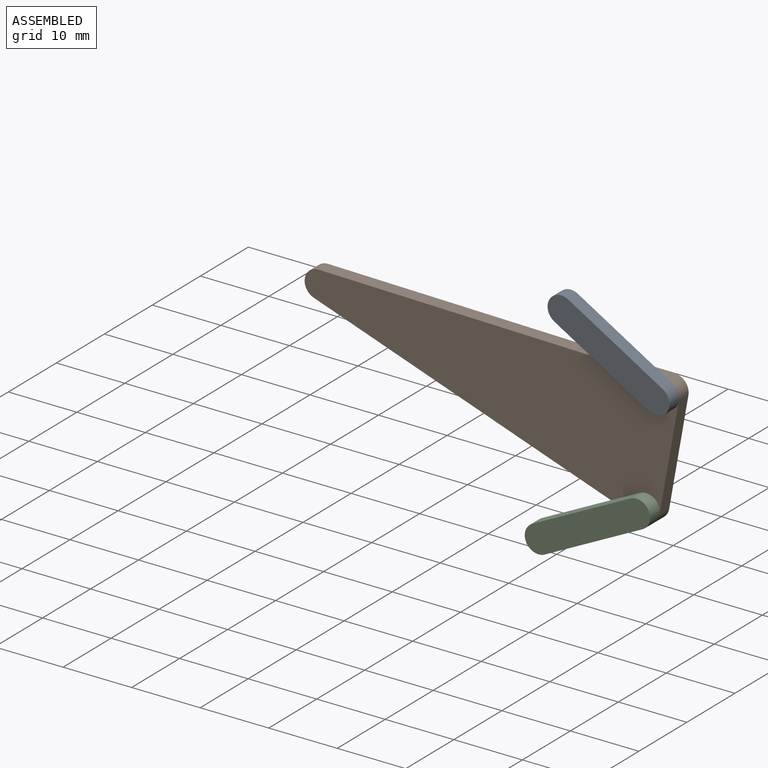
[diagram: assembled view]
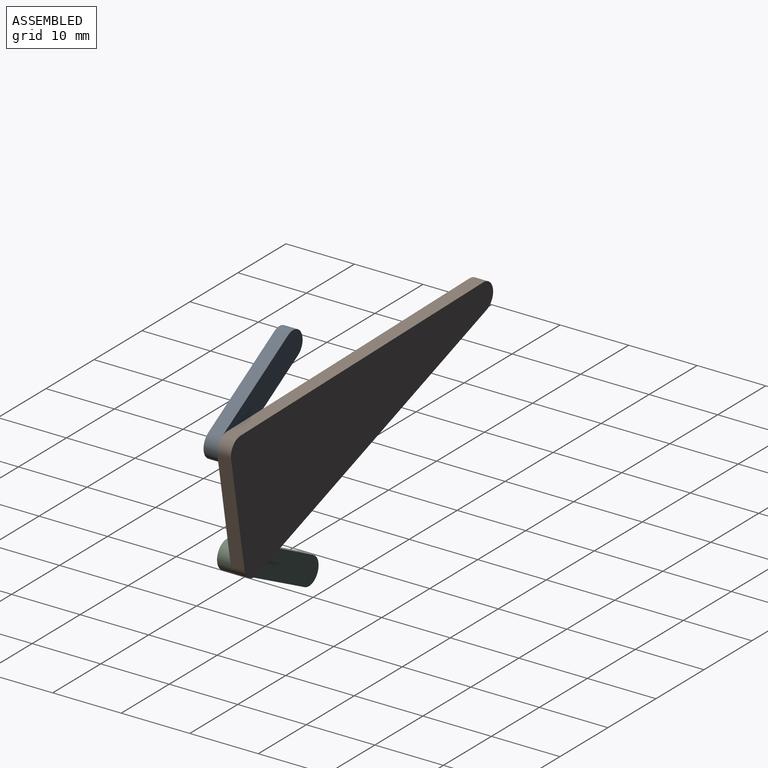
[diagram: assembled view, second angle]
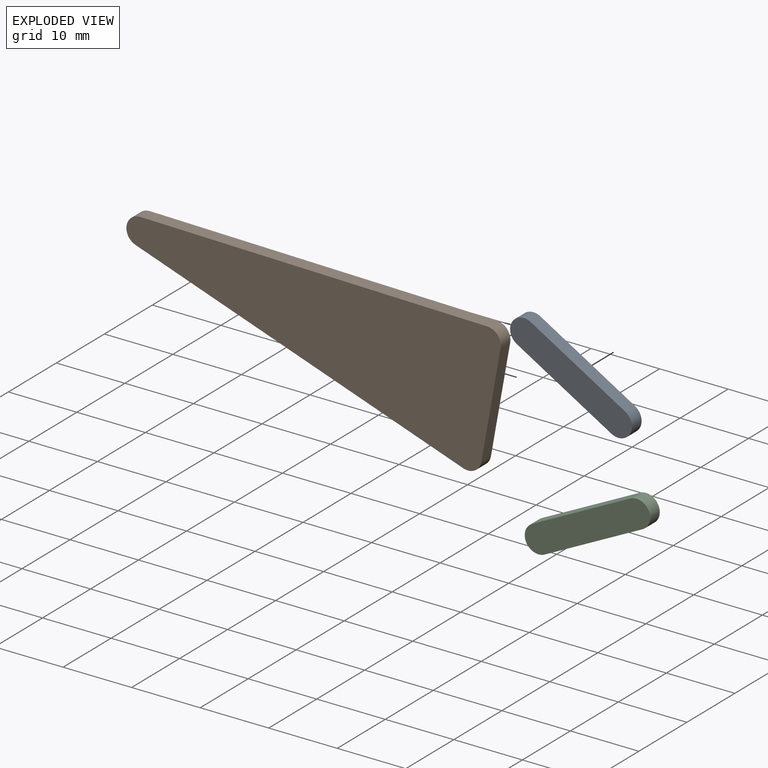
[diagram: exploded view]
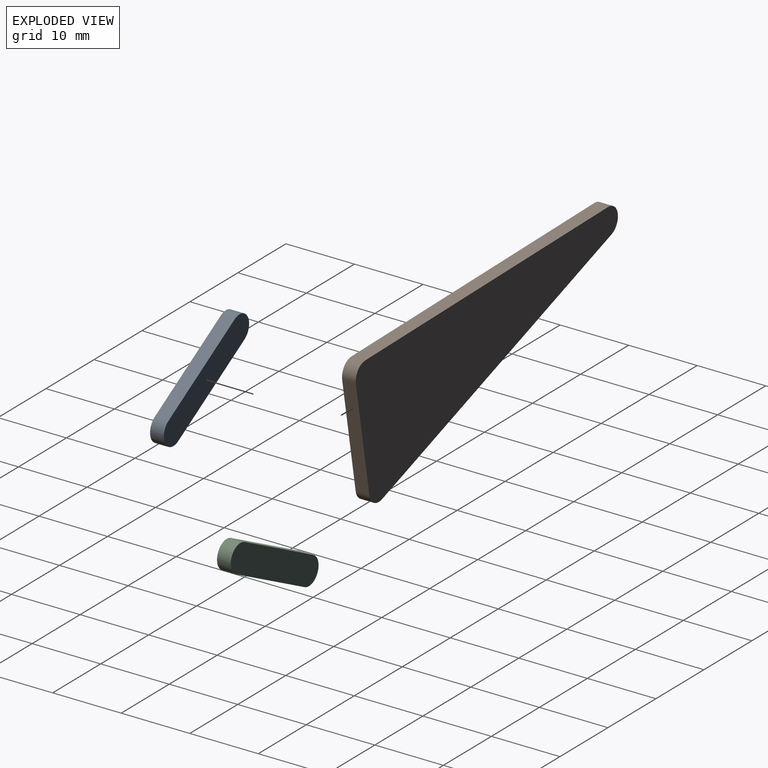
[diagram: exploded view, second angle]
ASSEMBLY  parts=3 mates=2
PART A: 6 faces, bbox 19.5x2x8 mm
  f0: cylinder r=2mm len=3.94mm, axis (0,1,0), area 12.6mm2, adj f1,f3,f4,f5
  f1: plane 15.5x3.98mm, normal (-0.25,0,-0.97), area 32mm2, adj f0,f2,f4,f5
  f2: cylinder r=2mm len=3.94mm, axis (0,1,0), area 12.6mm2, adj f1,f3,f4,f5
  f3: plane 15.5x3.98mm, normal (0.25,0,0.97), area 32mm2, adj f0,f2,f4,f5
  f4: plane 19.5x7.98mm, normal (0,-1,0), area 76.6mm2, adj f0,f1,f2,f3
  f5: plane 19.5x7.98mm, normal (0,1,0), area 76.6mm2, adj f0,f1,f2,f3
PART B: 8 faces, bbox 54.6x2x21.8 mm
  f0: cylinder r=2mm len=2.66mm, axis (0,-1,0), area 6.9mm2, adj f1,f5,f6,f7
  f1: plane 47.39x17.84mm, normal (-0.35,0,0.94), area 101.3mm2, adj f0,f2,f6,f7
  f2: cylinder r=2mm len=3.87mm, axis (0,-1,0), area 11.3mm2, adj f1,f3,f6,f7
  f3: plane 50.59x2.16mm, normal (0.04,0,-1), area 101.3mm2, adj f2,f4,f6,f7
  f4: cylinder r=2mm len=2.4mm, axis (0,-1,0), area 6.9mm2, adj f3,f5,f6,f7
  f5: plane 15.68x3.2mm, normal (0.98,0,0.2), area 32mm2, adj f0,f4,f6,f7
  f6: plane 54.59x21.84mm, normal (0,1,0), area 647.1mm2, adj f0,f1,f2,f3,f4,f5
  f7: plane 54.59x21.84mm, normal (0,-1,0), area 647.1mm2, adj f0,f1,f2,f3,f4,f5
PART C: same geometry as A
PLACE A rot(axis=(0.92,0,-0.38),180deg) t=(19.1,-3,33.09)mm
PLACE B rot(axis=(1,0,0.01),180deg) t=(-0.39,1,29.5)mm
PLACE C rot(axis=(0,-1,0),41deg) t=(15.33,-1,-10.97)mm
MATE revolute A.f2 <-> B.f4  axis (0,1,0) through (-3.45,-1,19.69)mm
MATE revolute B.f0 <-> C.f2  axis (0,1,0) through (-6.25,1,3.94)mm
